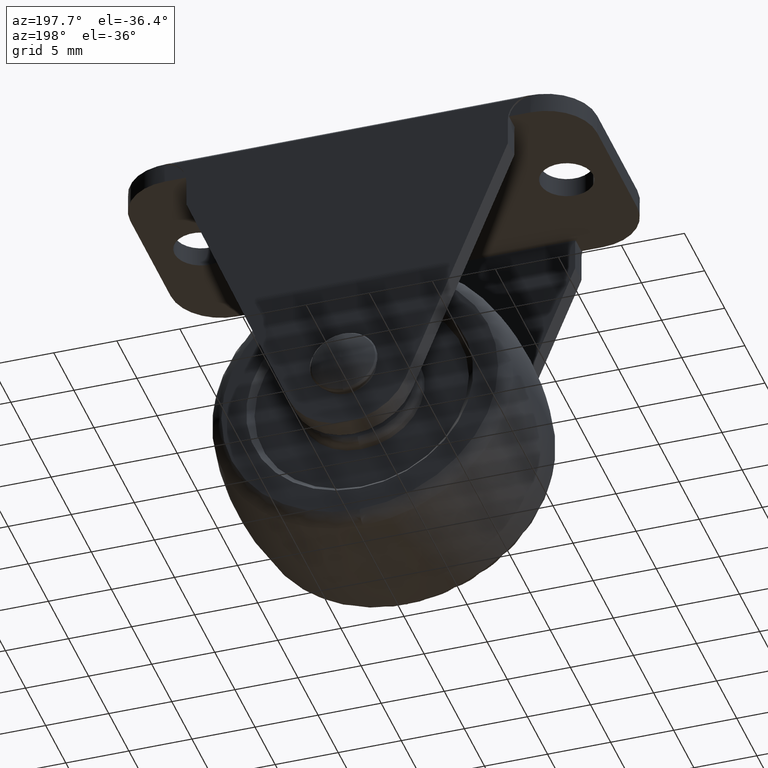
[diagram: clean part render]
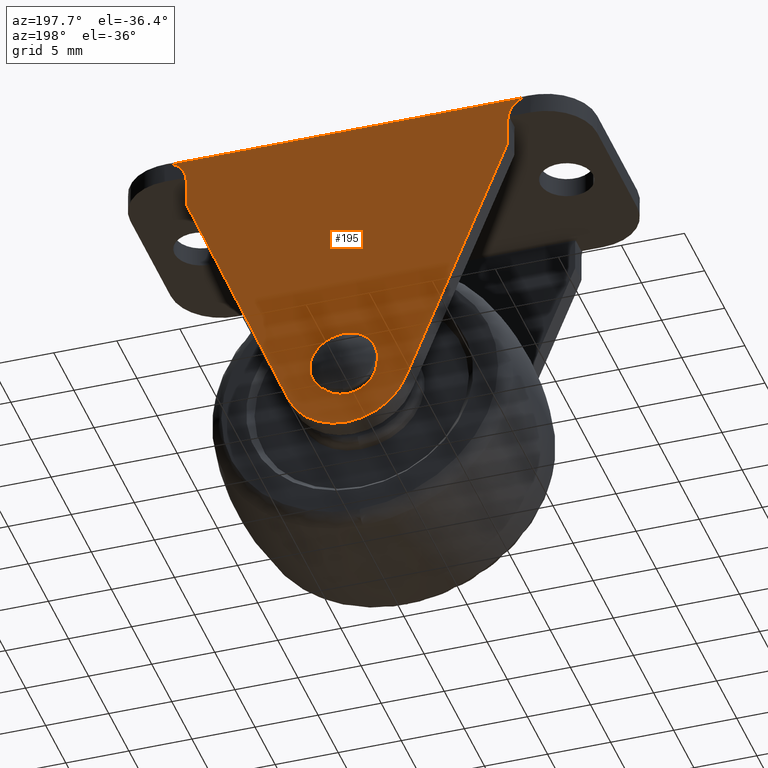
[diagram: same view with one face highlighted and labeled with its STEP entity id]
A machine part, auxiliary view. The second image highlights one B-rep face of the part: STEP entity #195.
In plain terms, the highlighted planar face has unit normal (0, -1, 0).
Its self-contained STEP definition (entity closure, byte-faithful):
#195=ADVANCED_FACE('',(#709,#710),#708,.F.);
#708=PLANE('',#1498);
#709=FACE_OUTER_BOUND('',#1499,.T.);
#710=FACE_BOUND('',#1500,.T.);
#1495=CARTESIAN_POINT('',(-1.66538647095E+01,9.15000200000E+00,2.50300002289E+01));
#1496=DIRECTION('',(0.00000000000E+00,-1.00000000000E+00,0.00000000000E+00));
#1497=DIRECTION('',(0.00000000000E+00,0.00000000000E+00,-1.00000000000E+00));
#1498=AXIS2_PLACEMENT_3D('',#1495,#1496,#1497);
#1499=EDGE_LOOP('',(#2174,#2175,#2176,#2177,#2178,#2179,#2180,#2181));
#1500=EDGE_LOOP('',(#2182,#2183));
#2174=ORIENTED_EDGE('',*,*,#2402,.T.);
#2175=ORIENTED_EDGE('',*,*,#2498,.T.);
#2176=ORIENTED_EDGE('',*,*,#2499,.T.);
#2177=ORIENTED_EDGE('',*,*,#2500,.F.);
#2178=ORIENTED_EDGE('',*,*,#2501,.F.);
#2179=ORIENTED_EDGE('',*,*,#2502,.F.);
#2180=ORIENTED_EDGE('',*,*,#2503,.F.);
#2181=ORIENTED_EDGE('',*,*,#2504,.F.);
#2182=ORIENTED_EDGE('',*,*,#2505,.T.);
#2183=ORIENTED_EDGE('',*,*,#2506,.T.);
#2402=EDGE_CURVE('',#2863,#2856,#2864,.T.);
#2498=EDGE_CURVE('',#2856,#3505,#3506,.T.);
#2499=EDGE_CURVE('',#3505,#3512,#3513,.T.);
#2500=EDGE_CURVE('',#3519,#3512,#3520,.T.);
#2501=EDGE_CURVE('',#3526,#3519,#3527,.T.);
#2502=EDGE_CURVE('',#3533,#3526,#3534,.T.);
#2503=EDGE_CURVE('',#3540,#3533,#3541,.T.);
#2504=EDGE_CURVE('',#2863,#3540,#3547,.T.);
#2505=EDGE_CURVE('',#3553,#3554,#3555,.T.);
#2506=EDGE_CURVE('',#3554,#3553,#3561,.T.);
#2856=VERTEX_POINT('',#4178);
#2863=VERTEX_POINT('',#4185);
#2864=CIRCLE('',#4189,2.00000000000E+00);
#3505=VERTEX_POINT('',#4573);
#3506=LINE('',#4574,#4575);
#3512=VERTEX_POINT('',#4577);
#3513=CIRCLE('',#4581,2.00000000000E+00);
#3519=VERTEX_POINT('',#4582);
#3520=LINE('',#4583,#4584);
#3526=VERTEX_POINT('',#4586);
#3527=LINE('',#4587,#4588);
#3533=VERTEX_POINT('',#4590);
#3534=CIRCLE('',#4594,5.00000000000E+00);
#3540=VERTEX_POINT('',#4595);
#3541=LINE('',#4596,#4597);
#3547=LINE('',#4599,#4600);
#3553=VERTEX_POINT('',#4602);
#3554=VERTEX_POINT('',#4603);
#3555=CIRCLE('',#4607,2.35000000000E+00);
#3561=CIRCLE('',#4611,2.35000000000E+00);
#4178=CARTESIAN_POINT('',(-1.38782202113E+01,9.15000200000E+00,2.23000000000E+01));
#4185=CARTESIAN_POINT('',(-1.27500000000E+01,9.15000200000E+00,2.05000000000E+01));
#4186=CARTESIAN_POINT('',(-1.47500000000E+01,9.15000200000E+00,2.05000000000E+01));
#4187=DIRECTION('',(0.00000000000E+00,-1.00000000000E+00,0.00000000000E+00));
#4188=DIRECTION('',(-0.00000000000E+00,-0.00000000000E+00,1.00000000000E+00));
#4189=AXIS2_PLACEMENT_3D('',#4186,#4187,#4188);
#4573=CARTESIAN_POINT('',(1.38782247707E+01,9.15000200000E+00,2.23000000000E+01));
#4574=CARTESIAN_POINT('',(-1.38782202113E+01,9.15000200000E+00,2.23000000000E+01));
#4575=VECTOR('',#4576,2.77564449820E+01);
#4576=DIRECTION('',(1.00000000000E+00,0.00000000000E+00,0.00000000000E+00));
#4577=CARTESIAN_POINT('',(1.27500045595E+01,9.15000200000E+00,2.04999983807E+01));
#4578=CARTESIAN_POINT('',(1.47500045595E+01,9.15000200000E+00,2.05000000000E+01));
#4579=DIRECTION('',(0.00000000000E+00,-1.00000000000E+00,0.00000000000E+00));
#4580=DIRECTION('',(-0.00000000000E+00,-0.00000000000E+00,1.00000000000E+00));
#4581=AXIS2_PLACEMENT_3D('',#4578,#4579,#4580);
#4582=CARTESIAN_POINT('',(1.27500045595E+01,9.15000200000E+00,1.83000511044E+01));
#4583=CARTESIAN_POINT('',(1.27500045595E+01,9.15000200000E+00,1.83000511044E+01));
#4584=VECTOR('',#4585,2.19994727635E+00);
#4585=DIRECTION('',(0.00000000000E+00,0.00000000000E+00,1.00000000000E+00));
#4586=CARTESIAN_POINT('',(4.63881455946E+00,9.15000200000E+00,-1.86584661925E+00));
#4587=CARTESIAN_POINT('',(4.63881455946E+00,9.15000200000E+00,-1.86584661925E+00));
#4588=VECTOR('',#4589,2.17360261827E+01);
#4589=DIRECTION('',(3.73168026750E-01,0.00000000000E+00,9.27763775867E-01));
#4590=CARTESIAN_POINT('',(-4.63882000000E+00,9.15000200000E+00,-1.86584500000E+00));
#4591=CARTESIAN_POINT('',(-2.39461662330E-06,9.15000200000E+00,-1.69897367088E-06));
#4592=DIRECTION('',(0.00000000000E+00,-1.00000000000E+00,0.00000000000E+00));
#4593=DIRECTION('',(-0.00000000000E+00,-0.00000000000E+00,1.00000000000E+00));
#4594=AXIS2_PLACEMENT_3D('',#4591,#4592,#4593);
#4595=CARTESIAN_POINT('',(-1.27500000000E+01,9.15000200000E+00,1.82999462766E+01));
#4596=CARTESIAN_POINT('',(-1.27500000000E+01,9.15000200000E+00,1.82999462766E+01));
#4597=VECTOR('',#4598,2.17359236933E+01);
#4598=DIRECTION('',(3.73169326247E-01,0.00000000000E+00,-9.27763253178E-01));
#4599=CARTESIAN_POINT('',(-1.27500000000E+01,9.15000200000E+00,2.05000000000E+01));
#4600=VECTOR('',#4601,2.20005372345E+00);
#4601=DIRECTION('',(0.00000000000E+00,0.00000000000E+00,-1.00000000000E+00));
#4602=CARTESIAN_POINT('',(0.00000000000E+00,9.15000200000E+00,-2.35000000000E+00));
#4603=CARTESIAN_POINT('',(0.00000000000E+00,9.15000200000E+00,2.35000000000E+00));
#4604=CARTESIAN_POINT('',(0.00000000000E+00,9.15000200000E+00,0.00000000000E+00));
#4605=DIRECTION('',(0.00000000000E+00,-1.00000000000E+00,-0.00000000000E+00));
#4606=DIRECTION('',(-1.22460635382E-16,0.00000000000E+00,-1.00000000000E+00));
#4607=AXIS2_PLACEMENT_3D('',#4604,#4605,#4606);
#4608=CARTESIAN_POINT('',(0.00000000000E+00,9.15000200000E+00,0.00000000000E+00));
#4609=DIRECTION('',(0.00000000000E+00,-1.00000000000E+00,-0.00000000000E+00));
#4610=DIRECTION('',(-1.22460635382E-16,0.00000000000E+00,-1.00000000000E+00));
#4611=AXIS2_PLACEMENT_3D('',#4608,#4609,#4610);